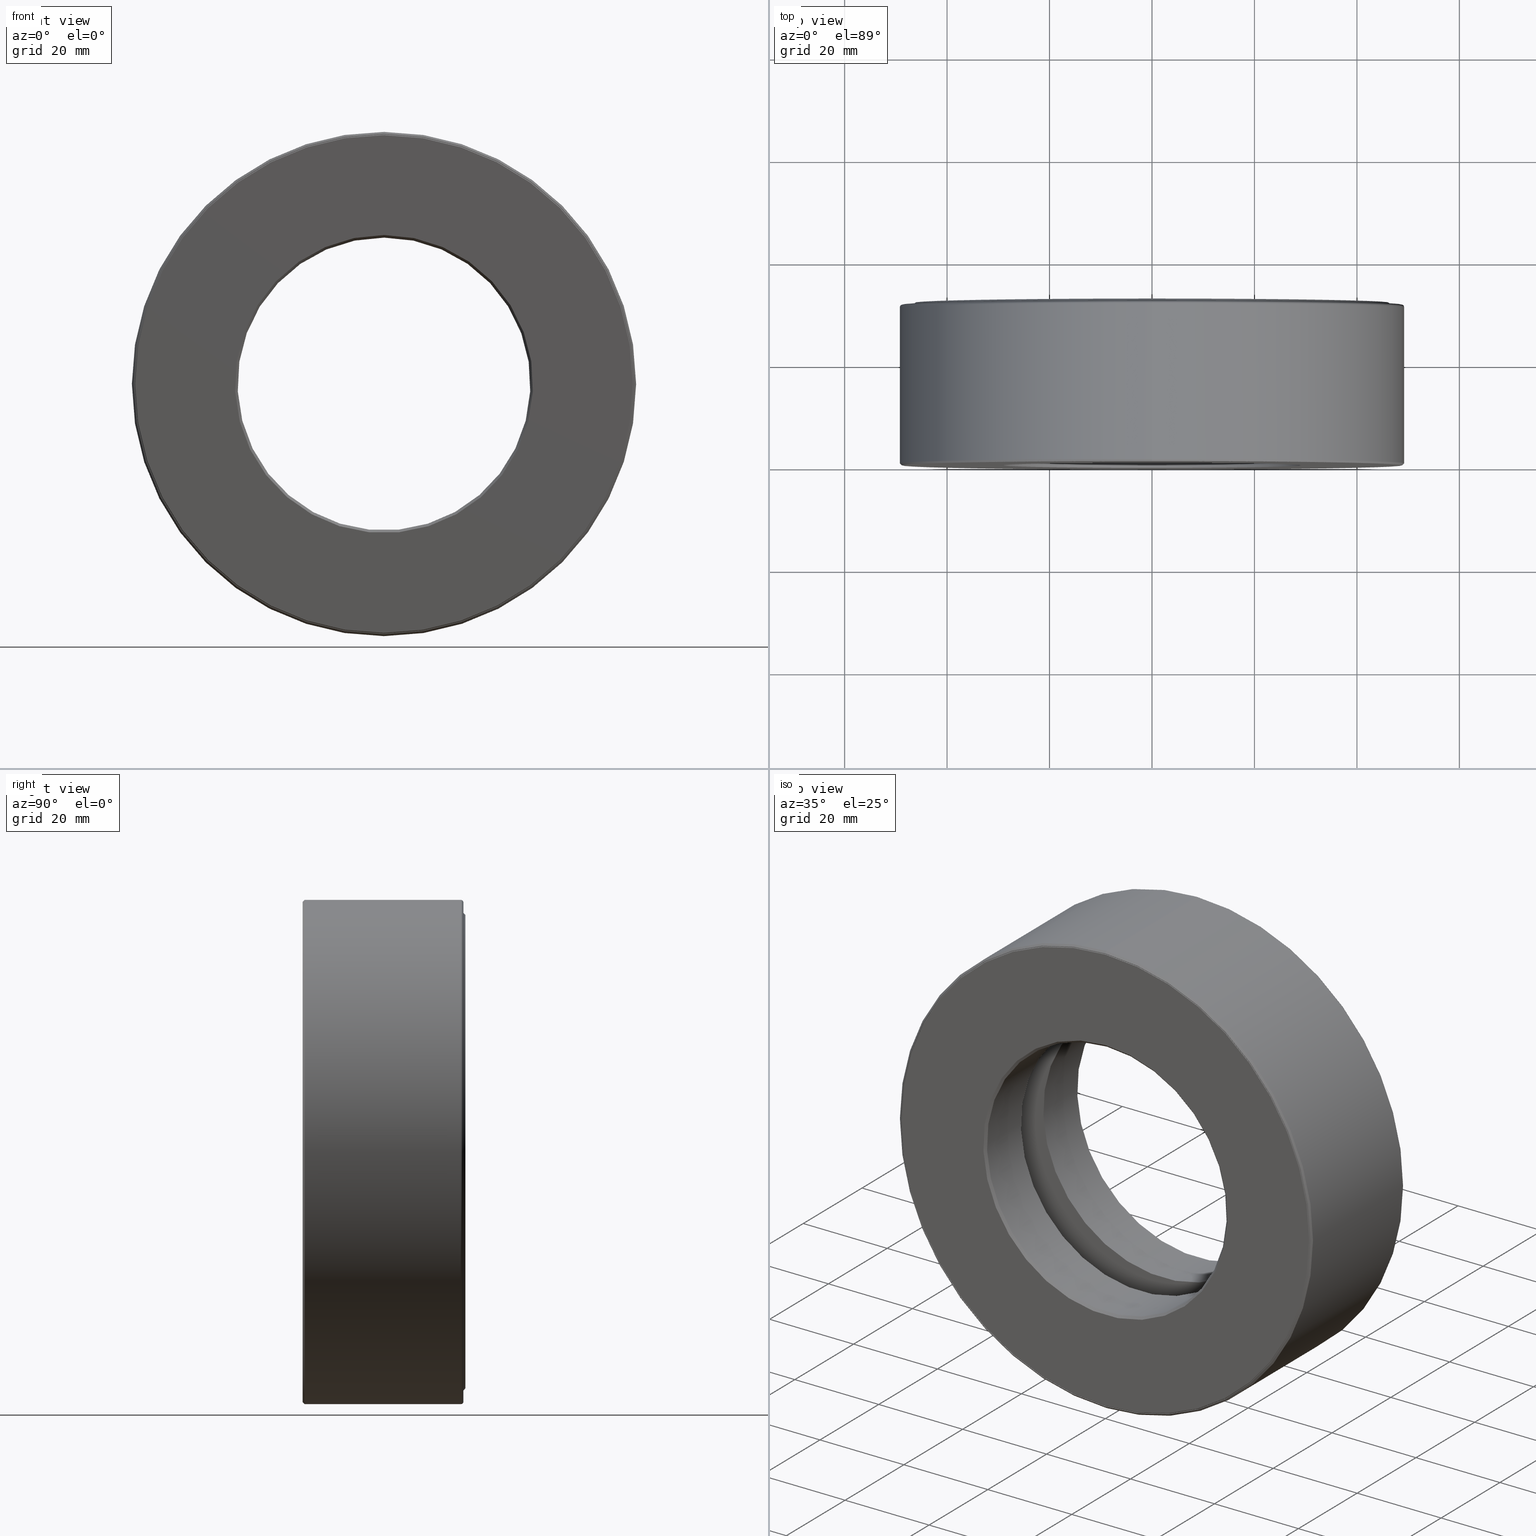
[diagram: canonical four-view strip — front | top / right | iso, engineering-drawing reading convention]
A machine part, canonical four-view strip (front | top / right | iso — engineering-drawing reading convention). The complete STEP part file that produces these views, byte-faithful:
ISO-10303-21;
HEADER;
FILE_DESCRIPTION (( 'STEP AP203' ),
    '1' );
FILE_NAME ('T-100-40.step',
    '2016-06-29T18:27:35',
    ( '' ),
    ( '' ),
    'SwSTEP 2.0',
    'SolidWorks 2016',
    '' );
FILE_SCHEMA (( 'CONFIG_CONTROL_DESIGN' ));
ENDSEC;

DATA;
#1 = ADVANCED_FACE ( 'NONE', ( #312, #441 ), #523, .F. ) ;
#2 = EDGE_CURVE ( 'NONE', #64, #64, #335, .T. ) ;
#3 =( LENGTH_UNIT ( ) NAMED_UNIT ( * ) SI_UNIT ( $, .METRE. ) );
#4 = CYLINDRICAL_SURFACE ( 'NONE', #491, 1.910499999999999600 ) ;
#5 = ORIENTED_EDGE ( 'NONE', *, *, #299, .F. ) ;
#6 = CALENDAR_DATE ( 2016, 29, 6 ) ;
#7 = CARTESIAN_POINT ( 'NONE',  ( 0.0000000000000000000, 1.235000000000000100, 0.0000000000000000000 ) ) ;
#8 = CYLINDRICAL_SURFACE ( 'NONE', #553, 1.125000000000000200 ) ;
#9 = AXIS2_PLACEMENT_3D ( 'NONE', #162, #260, #499 ) ;
#10 = EDGE_LOOP ( 'NONE', ( #157 ) ) ;
#11 = DIRECTION ( 'NONE',  ( -0.0000000000000000000, 1.000000000000000000, 0.0000000000000000000 ) ) ;
#12 = DIRECTION ( 'NONE',  ( 6.982962677686269100E-015, -0.0000000000000000000, 1.000000000000000000 ) ) ;
#13 = FACE_OUTER_BOUND ( 'NONE', #455, .T. ) ;
#14 = PERSON_AND_ORGANIZATION ( #92, #96 ) ;
#15 = ORIENTED_EDGE ( 'NONE', *, *, #159, .F. ) ;
#16 = DIRECTION ( 'NONE',  ( 0.0000000000000000000, 0.0000000000000000000, 1.000000000000000000 ) ) ;
#17 = DIRECTION ( 'NONE',  ( 0.0000000000000000000, 0.0000000000000000000, -1.000000000000000000 ) ) ;
#18 = DIRECTION ( 'NONE',  ( 0.0000000000000000000, 0.0000000000000000000, 1.000000000000000000 ) ) ;
#19 = SPHERICAL_SURFACE ( 'NONE', #519, 0.2500000000000000600 ) ;
#20 = TOROIDAL_SURFACE ( 'NONE', #118, 1.658499999999999900, 0.2499999999999999200 ) ;
#21 = DIRECTION ( 'NONE',  ( 0.0000000000000000000, 0.0000000000000000000, 1.000000000000000000 ) ) ;
#22 = ORIENTED_EDGE ( 'NONE', *, *, #468, .T. ) ;
#23 = DIRECTION ( 'NONE',  ( 0.0000000000000000000, 0.0000000000000000000, 1.000000000000000000 ) ) ;
#24 = CC_DESIGN_APPROVAL ( #512, ( #246 ) ) ;
#25 = DIRECTION ( 'NONE',  ( 0.0000000000000000000, -1.000000000000000000, 0.0000000000000000000 ) ) ;
#26 = CARTESIAN_POINT ( 'NONE',  ( 0.0000000000000000000, 0.0000000000000000000, 0.0000000000000000000 ) ) ;
#27 = DIRECTION ( 'NONE',  ( -0.0000000000000000000, 1.000000000000000000, -0.0000000000000000000 ) ) ;
#28 = AXIS2_PLACEMENT_3D ( 'NONE', #521, #386, #59 ) ;
#29 = FACE_OUTER_BOUND ( 'NONE', #446, .T. ) ;
#30 = CARTESIAN_POINT ( 'NONE',  ( -5.498422868604015000E-016, 0.4750000000000002600, 0.0000000000000000000 ) ) ;
#31 = EDGE_LOOP ( 'NONE', ( #98 ) ) ;
#32 = EDGE_LOOP ( 'NONE', ( #54 ) ) ;
#33 = CARTESIAN_POINT ( 'NONE',  ( 0.0000000000000000000, 1.215000000000000100, 0.0000000000000000000 ) ) ;
#34 = DIRECTION ( 'NONE',  ( 0.0000000000000000000, 0.0000000000000000000, 1.000000000000000000 ) ) ;
#35 = FACE_OUTER_BOUND ( 'NONE', #510, .T. ) ;
#36 = DIRECTION ( 'NONE',  ( -0.0000000000000000000, 1.000000000000000000, -0.0000000000000000000 ) ) ;
#37 = APPROVAL_PERSON_ORGANIZATION ( #398, #293, #219 ) ;
#38 = VERTEX_POINT ( 'NONE', #322 ) ;
#39 = DIRECTION ( 'NONE',  ( 0.0000000000000000000, 0.0000000000000000000, 1.000000000000000000 ) ) ;
#40 = ORIENTED_EDGE ( 'NONE', *, *, #456, .F. ) ;
#41 = AXIS2_PLACEMENT_3D ( 'NONE', #265, #556, #91 ) ;
#42 = EDGE_LOOP ( 'NONE', ( #22 ) ) ;
#43 = EDGE_LOOP ( 'NONE', ( #570 ) ) ;
#44 = CARTESIAN_POINT ( 'NONE',  ( 0.0000000000000000000, -1.088470684975604900E-016, 1.912499999999999600 ) ) ;
#45 = VERTEX_POINT ( 'NONE', #227 ) ;
#46 = CYLINDRICAL_SURFACE ( 'NONE', #250, 1.125000000000000200 ) ;
#47 = LENGTH_MEASURE_WITH_UNIT ( LENGTH_MEASURE( 0.02539999999999999900 ), #3 );
#48 = AXIS2_PLACEMENT_3D ( 'NONE', #399, #357, #592 ) ;
#49 = FACE_OUTER_BOUND ( 'NONE', #334, .T. ) ;
#50 = PERSON_AND_ORGANIZATION_ROLE ( 'design_owner' ) ;
#51 = EDGE_LOOP ( 'NONE', ( #5 ) ) ;
#52 = CARTESIAN_POINT ( 'NONE',  ( 0.0000000000000000000, 0.0000000000000000000, 0.0000000000000000000 ) ) ;
#53 = ADVANCED_FACE ( 'NONE', ( #603, #396 ), #154, .T. ) ;
#54 = ORIENTED_EDGE ( 'NONE', *, *, #547, .F. ) ;
#55 = CARTESIAN_POINT ( 'NONE',  ( -1.737186540141400900E-014, 0.6249999999999997800, -1.658499999999999900 ) ) ;
#56 = FACE_OUTER_BOUND ( 'NONE', #51, .T. ) ;
#57 = AXIS2_PLACEMENT_3D ( 'NONE', #99, #419, #142 ) ;
#58 = ORIENTED_EDGE ( 'NONE', *, *, #103, .F. ) ;
#59 = DIRECTION ( 'NONE',  ( 0.0000000000000000000, 0.0000000000000000000, 1.000000000000000000 ) ) ;
#60 = DIRECTION ( 'NONE',  ( -0.0000000000000000000, 1.000000000000000000, -0.0000000000000000000 ) ) ;
#61 = SPHERICAL_SURFACE ( 'NONE', #562, 0.2500000000000000600 ) ;
#62 = CARTESIAN_POINT ( 'NONE',  ( 0.0000000000000000000, 1.162000000000000100, 0.0000000000000000000 ) ) ;
#63 = CALENDAR_DATE ( 2016, 29, 6 ) ;
#64 = VERTEX_POINT ( 'NONE', #305 ) ;
#65 = AXIS2_PLACEMENT_3D ( 'NONE', #395, #539, #259 ) ;
#66 = PLANE ( 'NONE',  #200 ) ;
#67 = ORIENTED_EDGE ( 'NONE', *, *, #341, .T. ) ;
#68 = AXIS2_PLACEMENT_3D ( 'NONE', #73, #151, #431 ) ;
#69 = EDGE_LOOP ( 'NONE', ( #328 ) ) ;
#70 = CLOSED_SHELL ( 'NONE', ( #329 ) ) ;
#71 = DIRECTION ( 'NONE',  ( -0.0000000000000000000, 1.000000000000000000, 0.0000000000000000000 ) ) ;
#72 = VERTEX_POINT ( 'NONE', #463 ) ;
#73 = CARTESIAN_POINT ( 'NONE',  ( 0.0000000000000000000, 0.0000000000000000000, 0.0000000000000000000 ) ) ;
#74 = EDGE_CURVE ( 'NONE', #314, #314, #508, .T. ) ;
#75 = DIRECTION ( 'NONE',  ( -0.0000000000000000000, 1.000000000000000000, -0.0000000000000000000 ) ) ;
#76 = CARTESIAN_POINT ( 'NONE',  ( 0.0000000000000000000, 1.215000000000000100, 0.0000000000000000000 ) ) ;
#77 = DIRECTION ( 'NONE',  ( -0.0000000000000000000, 1.000000000000000000, -0.0000000000000000000 ) ) ;
#78 = CIRCLE ( 'NONE', #404, 1.145000000000000500 ) ;
#79 = LOCAL_TIME ( 14, 27, 35.00000000000000000, #353 ) ;
#80 = CARTESIAN_POINT ( 'NONE',  ( 0.0000000000000000000, 0.005000000000000413800, 1.917500000000000000 ) ) ;
#81 = DIRECTION ( 'NONE',  ( 0.0000000000000000000, 0.0000000000000000000, 1.000000000000000000 ) ) ;
#82 = VERTEX_POINT ( 'NONE', #466 ) ;
#83 = AXIS2_PLACEMENT_3D ( 'NONE', #500, #448, #39 ) ;
#84 = DIRECTION ( 'NONE',  ( -0.0000000000000000000, 1.000000000000000000, -0.0000000000000000000 ) ) ;
#85 = DATE_TIME_ROLE ( 'creation_date' ) ;
#86 = MANIFOLD_SOLID_BREP ( 'Revolve2[2]', #233 ) ;
#87 = EDGE_LOOP ( 'NONE', ( #254 ) ) ;
#88 = VERTEX_POINT ( 'NONE', #174 ) ;
#89 = EDGE_LOOP ( 'NONE', ( #474 ) ) ;
#90 = AXIS2_PLACEMENT_3D ( 'NONE', #582, #153, #156 ) ;
#91 = DIRECTION ( 'NONE',  ( 0.0000000000000000000, 0.0000000000000000000, 1.000000000000000000 ) ) ;
#92 = PERSON ( 'UNSPECIFIED', 'UNSPECIFIED', 'UNSPECIFIED', ('UNSPECIFIED'), ('UNSPECIFIED'), ('UNSPECIFIED') ) ;
#93 = EDGE_LOOP ( 'NONE', ( #464 ) ) ;
#94 = EDGE_CURVE ( 'NONE', #158, #158, #383, .T. ) ;
#95 = CARTESIAN_POINT ( 'NONE',  ( 0.0000000000000000000, -1.109813247426107000E-016, 0.0000000000000000000 ) ) ;
#96 = ORGANIZATION ( 'UNSPECIFIED', 'UNSPECIFIED', '' ) ;
#97 = CIRCLE ( 'NONE', #155, 1.917500000000000000 ) ;
#98 = ORIENTED_EDGE ( 'NONE', *, *, #574, .F. ) ;
#99 = CARTESIAN_POINT ( 'NONE',  ( 0.0000000000000000000, -1.088470684975604900E-016, 0.0000000000000000000 ) ) ;
#100 = AXIS2_PLACEMENT_3D ( 'NONE', #195, #60, #333 ) ;
#101 = VERTEX_POINT ( 'NONE', #410 ) ;
#102 = CARTESIAN_POINT ( 'NONE',  ( 0.0000000000000000000, 0.6249999999999997800, 0.0000000000000000000 ) ) ;
#103 = EDGE_CURVE ( 'NONE', #207, #207, #479, .T. ) ;
#104 = EDGE_LOOP ( 'NONE', ( #433 ) ) ;
#105 = CARTESIAN_POINT ( 'NONE',  ( 0.0000000000000000000, 0.01499999999999997700, 0.0000000000000000000 ) ) ;
#106 = ORIENTED_EDGE ( 'NONE', *, *, #351, .T. ) ;
#107 = DIRECTION ( 'NONE',  ( 0.0000000000000000000, -0.0000000000000000000, -1.000000000000000000 ) ) ;
#108 = CARTESIAN_POINT ( 'NONE',  ( 0.0000000000000000000, 0.02000000000000033300, 0.0000000000000000000 ) ) ;
#109 = AXIS2_PLACEMENT_3D ( 'NONE', #62, #84, #511 ) ;
#110 = FACE_OUTER_BOUND ( 'NONE', #32, .T. ) ;
#111 = ORIENTED_EDGE ( 'NONE', *, *, #272, .F. ) ;
#112 = CALENDAR_DATE ( 2016, 29, 6 ) ;
#113 = VERTEX_POINT ( 'NONE', #369 ) ;
#114 = ORIENTED_EDGE ( 'NONE', *, *, #245, .F. ) ;
#115 = DIRECTION ( 'NONE',  ( 0.0000000000000000000, 0.0000000000000000000, 1.000000000000000000 ) ) ;
#116 = AXIS2_PLACEMENT_3D ( 'NONE', #576, #387, #541 ) ;
#117 = ORIENTED_EDGE ( 'NONE', *, *, #566, .T. ) ;
#118 = AXIS2_PLACEMENT_3D ( 'NONE', #102, #138, #326 ) ;
#119 = DIRECTION ( 'NONE',  ( 0.0000000000000000000, 0.0000000000000000000, 1.000000000000000000 ) ) ;
#120 = CARTESIAN_POINT ( 'NONE',  ( 0.0000000000000000000, 1.235000000000000100, 0.0000000000000000000 ) ) ;
#121 = CIRCLE ( 'NONE', #236, 1.917500000000000000 ) ;
#122 = ORIENTED_EDGE ( 'NONE', *, *, #139, .T. ) ;
#123 = SECURITY_CLASSIFICATION_LEVEL ( 'unclassified' ) ;
#124 = CALENDAR_DATE ( 2016, 29, 6 ) ;
#125 = FACE_OUTER_BOUND ( 'NONE', #168, .T. ) ;
#126 = CARTESIAN_POINT ( 'NONE',  ( 0.0000000000000000000, 0.7749999999999996900, 1.858500000000000000 ) ) ;
#127 = EDGE_LOOP ( 'NONE', ( #589 ) ) ;
#128 = ADVANCED_FACE ( 'NONE', ( #29, #213 ), #496, .F. ) ;
#129 = CARTESIAN_POINT ( 'NONE',  ( 0.0000000000000000000, 1.235000000000000100, 1.857500000000000200 ) ) ;
#130 = ORIENTED_EDGE ( 'NONE', *, *, #103, .T. ) ;
#131 = UNCERTAINTY_MEASURE_WITH_UNIT (LENGTH_MEASURE( 1.000000000000000100E-005 ), #135, 'distance_accuracy_value', 'NONE');
#132 = CC_DESIGN_PERSON_AND_ORGANIZATION_ASSIGNMENT ( #255, #309, ( #484 ) ) ;
#133 = APPLICATION_PROTOCOL_DEFINITION ( 'international standard', 'config_control_design', 1994, #238 ) ;
#134 = FACE_OUTER_BOUND ( 'NONE', #505, .T. ) ;
#135 =( CONVERSION_BASED_UNIT ( 'INCH', #47 ) LENGTH_UNIT ( ) NAMED_UNIT ( #565 ) );
#136 = CIRCLE ( 'NONE', #109, 1.910499999999999600 ) ;
#137 = ADVANCED_FACE ( 'NONE', ( #261, #190 ), #268, .T. ) ;
#138 = DIRECTION ( 'NONE',  ( -0.0000000000000000000, 1.000000000000000000, -0.0000000000000000000 ) ) ;
#139 = EDGE_CURVE ( 'NONE', #307, #307, #173, .T. ) ;
#140 = CC_DESIGN_PERSON_AND_ORGANIZATION_ASSIGNMENT ( #282, #552, ( #484 ) ) ;
#141 = ADVANCED_FACE ( 'NONE', ( #134, #575 ), #20, .F. ) ;
#142 = DIRECTION ( 'NONE',  ( 0.0000000000000000000, 0.0000000000000000000, 1.000000000000000000 ) ) ;
#143 = EDGE_LOOP ( 'NONE', ( #482 ) ) ;
#144 = AXIS2_PLACEMENT_3D ( 'NONE', #483, #71, #23 ) ;
#145 = DIRECTION ( 'NONE',  ( -1.000000000000000000, 0.0000000000000000000, 6.982962677686269100E-015 ) ) ;
#146 = EDGE_LOOP ( 'NONE', ( #40 ) ) ;
#147 = DIRECTION ( 'NONE',  ( -0.0000000000000000000, 1.000000000000000000, -0.0000000000000000000 ) ) ;
#148 = FACE_OUTER_BOUND ( 'NONE', #31, .T. ) ;
#149 = AXIS2_PLACEMENT_3D ( 'NONE', #105, #330, #423 ) ;
#150 = VERTEX_POINT ( 'NONE', #180 ) ;
#151 = DIRECTION ( 'NONE',  ( -0.0000000000000000000, 1.000000000000000000, -0.0000000000000000000 ) ) ;
#152 = EDGE_LOOP ( 'NONE', ( #453 ) ) ;
#153 = DIRECTION ( 'NONE',  ( -0.0000000000000000000, 1.000000000000000000, -0.0000000000000000000 ) ) ;
#154 = PLANE ( 'NONE',  #372 ) ;
#155 = AXIS2_PLACEMENT_3D ( 'NONE', #447, #27, #218 ) ;
#156 = DIRECTION ( 'NONE',  ( 0.0000000000000000000, 0.0000000000000000000, 1.000000000000000000 ) ) ;
#157 = ORIENTED_EDGE ( 'NONE', *, *, #509, .F. ) ;
#158 = VERTEX_POINT ( 'NONE', #80 ) ;
#159 = EDGE_CURVE ( 'NONE', #550, #550, #368, .T. ) ;
#160 = CARTESIAN_POINT ( 'NONE',  ( 0.0000000000000000000, 1.229999999999999800, 0.0000000000000000000 ) ) ;
#161 = APPROVAL_ROLE ( '' ) ;
#162 = CARTESIAN_POINT ( 'NONE',  ( 0.0000000000000000000, 1.250000000000000000, 0.0000000000000000000 ) ) ;
#163 = FACE_OUTER_BOUND ( 'NONE', #89, .T. ) ;
#164 = APPROVAL_STATUS ( 'not_yet_approved' ) ;
#165 = COORDINATED_UNIVERSAL_TIME_OFFSET ( 5, 0, .BEHIND. ) ;
#166 = CIRCLE ( 'NONE', #211, 1.125000000000000000 ) ;
#167 = AXIS2_PLACEMENT_3D ( 'NONE', #95, #196, #18 ) ;
#168 = EDGE_LOOP ( 'NONE', ( #264 ) ) ;
#169 = DIRECTION ( 'NONE',  ( 0.0000000000000000000, 0.0000000000000000000, 1.000000000000000000 ) ) ;
#170 = APPROVAL_ROLE ( '' ) ;
#171 = DIRECTION ( 'NONE',  ( -0.0000000000000000000, 1.000000000000000000, -0.0000000000000000000 ) ) ;
#172 = CC_DESIGN_DATE_AND_TIME_ASSIGNMENT ( #390, #358, ( #246 ) ) ;
#173 = CIRCLE ( 'NONE', #297, 1.857500000000000200 ) ;
#174 = CARTESIAN_POINT ( 'NONE',  ( 0.0000000000000000000, 0.4750000000000002600, 1.917500000000000000 ) ) ;
#175 = CIRCLE ( 'NONE', #167, 1.922500000000000100 ) ;
#176 = AXIS2_PLACEMENT_3D ( 'NONE', #285, #192, #481 ) ;
#177 = ADVANCED_FACE ( 'NONE', ( #13, #221 ), #318, .T. ) ;
#178 = ADVANCED_FACE ( 'NONE', ( #503, #163 ), #4, .T. ) ;
#179 = AXIS2_PLACEMENT_3D ( 'NONE', #108, #426, #17 ) ;
#180 = CARTESIAN_POINT ( 'NONE',  ( 0.0000000000000000000, 1.250000000000000000, 1.822499999999999600 ) ) ;
#181 = PERSON_AND_ORGANIZATION ( #92, #96 ) ;
#182 = ADVANCED_FACE ( 'NONE', ( #513, #411 ), #424, .F. ) ;
#183 = FACE_BOUND ( 'NONE', #146, .T. ) ;
#184 = APPROVAL_STATUS ( 'not_yet_approved' ) ;
#185 = ORIENTED_EDGE ( 'NONE', *, *, #245, .T. ) ;
#186 = CARTESIAN_POINT ( 'NONE',  ( 0.0000000000000000000, 1.229999999999999800, 0.0000000000000000000 ) ) ;
#187 =( NAMED_UNIT ( * ) PLANE_ANGLE_UNIT ( ) SI_UNIT ( $, .RADIAN. ) );
#188 = MANIFOLD_SOLID_BREP ( 'Revolve2[1]', #579 ) ;
#189 = CARTESIAN_POINT ( 'NONE',  ( 0.0000000000000000000, 0.6249999999999997800, 0.0000000000000000000 ) ) ;
#190 = FACE_BOUND ( 'NONE', #591, .T. ) ;
#191 = CYLINDRICAL_SURFACE ( 'NONE', #275, 1.937499999999999800 ) ;
#192 = DIRECTION ( 'NONE',  ( -0.0000000000000000000, 1.000000000000000000, -0.0000000000000000000 ) ) ;
#193 = DIRECTION ( 'NONE',  ( 0.0000000000000000000, 0.0000000000000000000, 1.000000000000000000 ) ) ;
#194 = CIRCLE ( 'NONE', #57, 1.912499999999999600 ) ;
#195 = CARTESIAN_POINT ( 'NONE',  ( 0.0000000000000000000, 0.005000000000000413800, 0.0000000000000000000 ) ) ;
#196 = DIRECTION ( 'NONE',  ( -0.0000000000000000000, 1.000000000000000000, -0.0000000000000000000 ) ) ;
#197 = VERTEX_POINT ( 'NONE', #225 ) ;
#198 = CARTESIAN_POINT ( 'NONE',  ( -9.522558598604851900E-016, 0.7749999999999998000, 0.0000000000000000000 ) ) ;
#199 = EDGE_LOOP ( 'NONE', ( #222 ) ) ;
#200 = AXIS2_PLACEMENT_3D ( 'NONE', #389, #430, #580 ) ;
#201 = DIRECTION ( 'NONE',  ( -1.000000000000000000, 0.0000000000000000000, 3.491481338843134500E-015 ) ) ;
#202 = CARTESIAN_POINT ( 'NONE',  ( 0.0000000000000000000, 0.7749999999999996900, 0.0000000000000000000 ) ) ;
#203 = EDGE_LOOP ( 'NONE', ( #111 ) ) ;
#204 = EDGE_CURVE ( 'NONE', #407, #407, #194, .T. ) ;
#205 = PLANE ( 'NONE',  #144 ) ;
#206 = APPROVAL ( #403, 'UNSPECIFIED' ) ;
#207 = VERTEX_POINT ( 'NONE', #498 ) ;
#208 = EDGE_LOOP ( 'NONE', ( #130 ) ) ;
#209 = EDGE_LOOP ( 'NONE', ( #271 ) ) ;
#210 = CLOSED_SHELL ( 'NONE', ( #231 ) ) ;
#211 = AXIS2_PLACEMENT_3D ( 'NONE', #359, #75, #397 ) ;
#212 = DIRECTION ( 'NONE',  ( 0.0000000000000000000, -0.0000000000000000000, -1.000000000000000000 ) ) ;
#213 = FACE_OUTER_BOUND ( 'NONE', #344, .T. ) ;
#214 = APPROVAL_PERSON_ORGANIZATION ( #480, #206, #170 ) ;
#215 = AXIS2_PLACEMENT_3D ( 'NONE', #534, #394, #21 ) ;
#216 = PLANE ( 'NONE',  #501 ) ;
#217 = FACE_OUTER_BOUND ( 'NONE', #10, .T. ) ;
#218 = DIRECTION ( 'NONE',  ( 0.0000000000000000000, 0.0000000000000000000, 1.000000000000000000 ) ) ;
#219 = APPROVAL_ROLE ( '' ) ;
#220 = CARTESIAN_POINT ( 'NONE',  ( 0.0000000000000000000, 1.250000000000000000, 0.0000000000000000000 ) ) ;
#221 = FACE_BOUND ( 'NONE', #104, .T. ) ;
#222 = ORIENTED_EDGE ( 'NONE', *, *, #272, .T. ) ;
#223 = FACE_BOUND ( 'NONE', #203, .T. ) ;
#224 = AXIS2_PLACEMENT_3D ( 'NONE', #189, #171, #442 ) ;
#225 = CARTESIAN_POINT ( 'NONE',  ( 0.0000000000000000000, 1.215000000000000100, 1.857500000000000200 ) ) ;
#226 = ORIENTED_EDGE ( 'NONE', *, *, #574, .T. ) ;
#227 = CARTESIAN_POINT ( 'NONE',  ( 0.0000000000000000000, 1.235000000000000100, 1.917500000000000000 ) ) ;
#228 = ADVANCED_FACE ( 'NONE', ( ), #19, .T. ) ;
#229 = EDGE_CURVE ( 'NONE', #197, #197, #469, .T. ) ;
#230 = ORIENTED_EDGE ( 'NONE', *, *, #204, .F. ) ;
#231 = ADVANCED_FACE ( 'NONE', ( ), #61, .T. ) ;
#232 = COORDINATED_UNIVERSAL_TIME_OFFSET ( 5, 0, .BEHIND. ) ;
#233 = CLOSED_SHELL ( 'NONE', ( #53, #605, #277, #319, #568, #373, #283, #178 ) ) ;
#234 = CARTESIAN_POINT ( 'NONE',  ( 0.0000000000000000000, 0.7750000000000000200, 1.125000000000000200 ) ) ;
#235 = DIRECTION ( 'NONE',  ( 0.0000000000000000000, 0.0000000000000000000, 1.000000000000000000 ) ) ;
#236 = AXIS2_PLACEMENT_3D ( 'NONE', #76, #36, #34 ) ;
#237 = ADVANCED_FACE ( 'NONE', ( #110, #388 ), #66, .F. ) ;
#238 = APPLICATION_CONTEXT ( 'configuration controlled 3d designs of mechanical parts and assemblies' ) ;
#239 = FACE_OUTER_BOUND ( 'NONE', #584, .T. ) ;
#240 = ORIENTED_EDGE ( 'NONE', *, *, #536, .T. ) ;
#241 = APPROVAL_DATE_TIME ( #377, #206 ) ;
#242 = CONICAL_SURFACE ( 'NONE', #269, 1.125000000000000200, 0.7853981633974449500 ) ;
#243 = ORIENTED_EDGE ( 'NONE', *, *, #509, .T. ) ;
#244 = CARTESIAN_POINT ( 'NONE',  ( -2.302937715538538000E-032, -5.442353424878024300E-017, 0.0000000000000000000 ) ) ;
#245 = EDGE_CURVE ( 'NONE', #346, #346, #78, .T. ) ;
#246 = SECURITY_CLASSIFICATION ( '', '', #123 ) ;
#247 = ORIENTED_EDGE ( 'NONE', *, *, #229, .F. ) ;
#248 = DIRECTION ( 'NONE',  ( -0.0000000000000000000, 1.000000000000000000, -0.0000000000000000000 ) ) ;
#249 = CARTESIAN_POINT ( 'NONE',  ( 0.0000000000000000000, 0.4750000000000003100, 0.0000000000000000000 ) ) ;
#250 = AXIS2_PLACEMENT_3D ( 'NONE', #296, #147, #257 ) ;
#251 = DIRECTION ( 'NONE',  ( -3.491481338843134500E-015, 0.0000000000000000000, -1.000000000000000000 ) ) ;
#252 = SPHERICAL_SURFACE ( 'NONE', #583, 0.2500000000000000600 ) ;
#253 = DIRECTION ( 'NONE',  ( -0.0000000000000000000, 1.000000000000000000, -0.0000000000000000000 ) ) ;
#254 = ORIENTED_EDGE ( 'NONE', *, *, #159, .T. ) ;
#255 = PERSON_AND_ORGANIZATION ( #92, #96 ) ;
#256 = FACE_BOUND ( 'NONE', #43, .T. ) ;
#257 = DIRECTION ( 'NONE',  ( 0.0000000000000000000, 0.0000000000000000000, 1.000000000000000000 ) ) ;
#258 = ORIENTED_EDGE ( 'NONE', *, *, #139, .F. ) ;
#259 = DIRECTION ( 'NONE',  ( 0.0000000000000000000, 0.0000000000000000000, 1.000000000000000000 ) ) ;
#260 = DIRECTION ( 'NONE',  ( -0.0000000000000000000, 1.000000000000000000, -0.0000000000000000000 ) ) ;
#261 = FACE_OUTER_BOUND ( 'NONE', #323, .T. ) ;
#262 = DIRECTION ( 'NONE',  ( 0.0000000000000000000, -1.000000000000000000, 0.0000000000000000000 ) ) ;
#263 = LOCAL_TIME ( 14, 27, 35.00000000000000000, #370 ) ;
#264 = ORIENTED_EDGE ( 'NONE', *, *, #351, .F. ) ;
#265 = CARTESIAN_POINT ( 'NONE',  ( 0.0000000000000000000, 1.235000000000000100, 0.0000000000000000000 ) ) ;
#266 = PRODUCT_RELATED_PRODUCT_CATEGORY ( 'detail', '', ( #559 ) ) ;
#267 = CIRCLE ( 'NONE', #90, 1.858500000000000000 ) ;
#268 = CONICAL_SURFACE ( 'NONE', #176, 1.912499999999999600, 0.7853981633974316300 ) ;
#269 = AXIS2_PLACEMENT_3D ( 'NONE', #186, #417, #235 ) ;
#270 = FACE_OUTER_BOUND ( 'NONE', #87, .T. ) ;
#271 = ORIENTED_EDGE ( 'NONE', *, *, #495, .F. ) ;
#272 = EDGE_CURVE ( 'NONE', #525, #525, #267, .T. ) ;
#273 = CC_DESIGN_SECURITY_CLASSIFICATION ( #246, ( #484 ) ) ;
#274 = ORIENTED_EDGE ( 'NONE', *, *, #74, .F. ) ;
#275 = AXIS2_PLACEMENT_3D ( 'NONE', #355, #308, #81 ) ;
#276 = CARTESIAN_POINT ( 'NONE',  ( 0.0000000000000000000, 0.7749999999999996900, 1.458499999999999500 ) ) ;
#277 = ADVANCED_FACE ( 'NONE', ( #560, #425 ), #436, .T. ) ;
#278 = AXIS2_PLACEMENT_3D ( 'NONE', #30, #460, #409 ) ;
#279 = ADVANCED_FACE ( 'NONE', ( #546, #360 ), #487, .F. ) ;
#280 = CARTESIAN_POINT ( 'NONE',  ( 0.0000000000000000000, -1.109813247426107000E-016, 1.922500000000000100 ) ) ;
#281 = CIRCLE ( 'NONE', #476, 1.937500000000000000 ) ;
#282 = PERSON_AND_ORGANIZATION ( #92, #96 ) ;
#283 = ADVANCED_FACE ( 'NONE', ( #239, #343 ), #375, .T. ) ;
#284 = VERTEX_POINT ( 'NONE', #457 ) ;
#285 = CARTESIAN_POINT ( 'NONE',  ( 0.0000000000000000000, -1.088470684975604900E-016, 0.0000000000000000000 ) ) ;
#286 = ADVANCED_FACE ( 'NONE', ( #598, #402 ), #205, .F. ) ;
#287 = DIRECTION ( 'NONE',  ( -0.0000000000000000000, 1.000000000000000000, -0.0000000000000000000 ) ) ;
#288 = ORIENTED_EDGE ( 'NONE', *, *, #536, .F. ) ;
#289 = DIRECTION ( 'NONE',  ( -0.0000000000000000000, 1.000000000000000000, -0.0000000000000000000 ) ) ;
#290 = FACE_BOUND ( 'NONE', #420, .T. ) ;
#291 = EDGE_CURVE ( 'NONE', #321, #321, #304, .T. ) ;
#292 = EDGE_LOOP ( 'NONE', ( #356 ) ) ;
#293 = APPROVAL ( #184, 'UNSPECIFIED' ) ;
#294 = CIRCLE ( 'NONE', #215, 1.858500000000000000 ) ;
#295 = VERTEX_POINT ( 'NONE', #280 ) ;
#296 = CARTESIAN_POINT ( 'NONE',  ( 0.0000000000000000000, 0.0000000000000000000, 0.0000000000000000000 ) ) ;
#297 = AXIS2_PLACEMENT_3D ( 'NONE', #7, #380, #571 ) ;
#298 = DIRECTION ( 'NONE',  ( 0.0000000000000000000, 0.0000000000000000000, 1.000000000000000000 ) ) ;
#299 = EDGE_CURVE ( 'NONE', #533, #533, #294, .T. ) ;
#300 = CARTESIAN_POINT ( 'NONE',  ( -1.658499999999999900, 0.6249999999999997800, 0.0000000000000000000 ) ) ;
#301 = EDGE_LOOP ( 'NONE', ( #586 ) ) ;
#302 = FACE_OUTER_BOUND ( 'NONE', #152, .T. ) ;
#303 = DIRECTION ( 'NONE',  ( 0.0000000000000000000, -1.000000000000000000, 0.0000000000000000000 ) ) ;
#304 = CIRCLE ( 'NONE', #597, 1.458499999999999500 ) ;
#305 = CARTESIAN_POINT ( 'NONE',  ( 0.0000000000000000000, 0.7749999999999996900, 1.910499999999999600 ) ) ;
#306 = LOCAL_TIME ( 14, 27, 35.00000000000000000, #364 ) ;
#307 = VERTEX_POINT ( 'NONE', #129 ) ;
#308 = DIRECTION ( 'NONE',  ( -0.0000000000000000000, 1.000000000000000000, -0.0000000000000000000 ) ) ;
#309 = PERSON_AND_ORGANIZATION_ROLE ( 'design_supplier' ) ;
#310 = CARTESIAN_POINT ( 'NONE',  ( 0.0000000000000000000, 0.01499999999999997700, 1.937499999999999800 ) ) ;
#311 = CC_DESIGN_PERSON_AND_ORGANIZATION_ASSIGNMENT ( #514, #451, ( #246 ) ) ;
#312 = FACE_OUTER_BOUND ( 'NONE', #209, .T. ) ;
#313 = AXIS2_PLACEMENT_3D ( 'NONE', #518, #416, #374 ) ;
#314 = VERTEX_POINT ( 'NONE', #310 ) ;
#315 = EDGE_CURVE ( 'NONE', #113, #113, #281, .T. ) ;
#316 = ADVANCED_FACE ( 'NONE', ( ), #529, .T. ) ;
#317 = CARTESIAN_POINT ( 'NONE',  ( 0.0000000000000000000, 0.4750000000000003100, 1.458499999999999500 ) ) ;
#318 = CONICAL_SURFACE ( 'NONE', #452, 1.922500000000000100, 0.7853981633974355100 ) ;
#319 = ADVANCED_FACE ( 'NONE', ( #35, #148 ), #46, .F. ) ;
#320 = DATE_AND_TIME ( #385, #263 ) ;
#321 = VERTEX_POINT ( 'NONE', #276 ) ;
#322 = CARTESIAN_POINT ( 'NONE',  ( 0.0000000000000000000, -1.099121123854712800E-016, 1.917500000000000000 ) ) ;
#323 = EDGE_LOOP ( 'NONE', ( #438 ) ) ;
#324 = AXIS2_PLACEMENT_3D ( 'NONE', #332, #554, #449 ) ;
#325 = EDGE_LOOP ( 'NONE', ( #258 ) ) ;
#326 = DIRECTION ( 'NONE',  ( 0.0000000000000000000, 0.0000000000000000000, 1.000000000000000000 ) ) ;
#327 = CIRCLE ( 'NONE', #83, 1.917500000000000000 ) ;
#328 = ORIENTED_EDGE ( 'NONE', *, *, #315, .T. ) ;
#329 = ADVANCED_FACE ( 'NONE', ( ), #252, .T. ) ;
#330 = DIRECTION ( 'NONE',  ( -0.0000000000000000000, 1.000000000000000000, -0.0000000000000000000 ) ) ;
#331 = MANIFOLD_SOLID_BREP ( 'BALLS[3]', #567 ) ;
#332 = CARTESIAN_POINT ( 'NONE',  ( 0.0000000000000000000, 0.7750000000000000200, 0.0000000000000000000 ) ) ;
#333 = DIRECTION ( 'NONE',  ( 0.0000000000000000000, 0.0000000000000000000, 1.000000000000000000 ) ) ;
#334 = EDGE_LOOP ( 'NONE', ( #517 ) ) ;
#335 = CIRCLE ( 'NONE', #604, 1.910499999999999600 ) ;
#336 = CARTESIAN_POINT ( 'NONE',  ( 0.0000000000000000000, -1.109813247426107000E-016, 0.0000000000000000000 ) ) ;
#337 = DATE_AND_TIME ( #63, #79 ) ;
#338 = FACE_OUTER_BOUND ( 'NONE', #127, .T. ) ;
#339 = AXIS2_PLACEMENT_3D ( 'NONE', #33, #77, #590 ) ;
#340 = ORIENTED_EDGE ( 'NONE', *, *, #456, .T. ) ;
#341 = EDGE_CURVE ( 'NONE', #284, #284, #121, .T. ) ;
#342 = CC_DESIGN_DATE_AND_TIME_ASSIGNMENT ( #548, #85, ( #381 ) ) ;
#343 = FACE_BOUND ( 'NONE', #301, .T. ) ;
#344 = EDGE_LOOP ( 'NONE', ( #122 ) ) ;
#345 = DIRECTION ( 'NONE',  ( 1.000000000000000000, 0.0000000000000000000, 0.0000000000000000000 ) ) ;
#346 = VERTEX_POINT ( 'NONE', #405 ) ;
#347 = DIRECTION ( 'NONE',  ( 0.0000000000000000000, -0.0000000000000000000, -1.000000000000000000 ) ) ;
#348 = DIRECTION ( 'NONE',  ( 0.0000000000000000000, 0.0000000000000000000, -1.000000000000000000 ) ) ;
#349 = CC_DESIGN_PERSON_AND_ORGANIZATION_ASSIGNMENT ( #181, #50, ( #559 ) ) ;
#350 = DIRECTION ( 'NONE',  ( -0.0000000000000000000, 1.000000000000000000, 0.0000000000000000000 ) ) ;
#351 = EDGE_CURVE ( 'NONE', #585, #585, #166, .T. ) ;
#352 = ORIENTED_EDGE ( 'NONE', *, *, #341, .F. ) ;
#353 = COORDINATED_UNIVERSAL_TIME_OFFSET ( 5, 0, .BEHIND. ) ;
#354 = MANIFOLD_SOLID_BREP ( 'BALLS[1]', #535 ) ;
#355 = CARTESIAN_POINT ( 'NONE',  ( 0.0000000000000000000, 0.0000000000000000000, 0.0000000000000000000 ) ) ;
#356 = ORIENTED_EDGE ( 'NONE', *, *, #94, .T. ) ;
#357 = DIRECTION ( 'NONE',  ( -0.0000000000000000000, 1.000000000000000000, -0.0000000000000000000 ) ) ;
#358 = DATE_TIME_ROLE ( 'classification_date' ) ;
#359 = CARTESIAN_POINT ( 'NONE',  ( 0.0000000000000000000, 0.02000000000000033300, 0.0000000000000000000 ) ) ;
#360 = FACE_BOUND ( 'NONE', #599, .T. ) ;
#361 = PERSON_AND_ORGANIZATION_ROLE ( 'creator' ) ;
#362 =( GEOMETRIC_REPRESENTATION_CONTEXT ( 3 ) GLOBAL_UNCERTAINTY_ASSIGNED_CONTEXT ( ( #131 ) ) GLOBAL_UNIT_ASSIGNED_CONTEXT ( ( #135, #187, #413 ) ) REPRESENTATION_CONTEXT ( 'NONE', 'WORKASPACE' ) );
#363 = EDGE_LOOP ( 'NONE', ( #243 ) ) ;
#364 = COORDINATED_UNIVERSAL_TIME_OFFSET ( 5, 0, .BEHIND. ) ;
#365 = FACE_OUTER_BOUND ( 'NONE', #42, .T. ) ;
#366 = EDGE_LOOP ( 'NONE', ( #596 ) ) ;
#367 = ORIENTED_EDGE ( 'NONE', *, *, #74, .T. ) ;
#368 = CIRCLE ( 'NONE', #437, 1.458499999999999500 ) ;
#369 = CARTESIAN_POINT ( 'NONE',  ( 0.0000000000000000000, 1.215000000000000100, 1.937500000000000000 ) ) ;
#370 = COORDINATED_UNIVERSAL_TIME_OFFSET ( 5, 0, .BEHIND. ) ;
#371 = ADVANCED_FACE ( 'NONE', ( #125, #569 ), #8, .F. ) ;
#372 = AXIS2_PLACEMENT_3D ( 'NONE', #202, #25, #347 ) ;
#373 = ADVANCED_FACE ( 'NONE', ( #365, #290 ), #549, .T. ) ;
#374 = DIRECTION ( 'NONE',  ( 1.000000000000000000, 0.0000000000000000000, 0.0000000000000000000 ) ) ;
#375 = CONICAL_SURFACE ( 'NONE', #116, 1.822499999999999600, 0.7853981633974498300 ) ;
#376 = EDGE_LOOP ( 'NONE', ( #226 ) ) ;
#377 = DATE_AND_TIME ( #124, #532 ) ;
#378 = ADVANCED_FACE ( 'NONE', ( #414, #428 ), #462, .F. ) ;
#379 = DIRECTION ( 'NONE',  ( 0.0000000000000000000, 0.0000000000000000000, 1.000000000000000000 ) ) ;
#380 = DIRECTION ( 'NONE',  ( -0.0000000000000000000, 1.000000000000000000, -0.0000000000000000000 ) ) ;
#381 = PRODUCT_DEFINITION ( 'UNKNOWN', '', #484, #465 ) ;
#382 = DIRECTION ( 'NONE',  ( 1.000000000000000000, 0.0000000000000000000, -1.047444401652940000E-014 ) ) ;
#383 = CIRCLE ( 'NONE', #100, 1.917500000000000000 ) ;
#384 = CARTESIAN_POINT ( 'NONE',  ( 1.658499999999999900, 0.6249999999999997800, -1.158124360094267100E-014 ) ) ;
#385 = CALENDAR_DATE ( 2016, 29, 6 ) ;
#386 = DIRECTION ( 'NONE',  ( -0.0000000000000000000, 1.000000000000000000, -0.0000000000000000000 ) ) ;
#387 = DIRECTION ( 'NONE',  ( 0.0000000000000000000, -1.000000000000000000, 0.0000000000000000000 ) ) ;
#388 = FACE_BOUND ( 'NONE', #493, .T. ) ;
#389 = CARTESIAN_POINT ( 'NONE',  ( -6.418956046085688700E-032, -1.104467185640409900E-016, 0.0000000000000000000 ) ) ;
#390 = DATE_AND_TIME ( #6, #444 ) ;
#391 = CIRCLE ( 'NONE', #531, 1.125000000000000200 ) ;
#392 = DIRECTION ( 'NONE',  ( 0.0000000000000000000, -1.000000000000000000, 0.0000000000000000000 ) ) ;
#393 = AXIS2_PLACEMENT_3D ( 'NONE', #160, #497, #440 ) ;
#394 = DIRECTION ( 'NONE',  ( -0.0000000000000000000, 1.000000000000000000, -0.0000000000000000000 ) ) ;
#395 = CARTESIAN_POINT ( 'NONE',  ( 0.0000000000000000000, 0.0000000000000000000, 0.0000000000000000000 ) ) ;
#396 = FACE_OUTER_BOUND ( 'NONE', #470, .T. ) ;
#397 = DIRECTION ( 'NONE',  ( 0.0000000000000000000, 0.0000000000000000000, 1.000000000000000000 ) ) ;
#398 = PERSON_AND_ORGANIZATION ( #92, #96 ) ;
#399 = CARTESIAN_POINT ( 'NONE',  ( 0.0000000000000000000, 0.0000000000000000000, 0.0000000000000000000 ) ) ;
#400 = EDGE_LOOP ( 'NONE', ( #58 ) ) ;
#401 = AXIS2_PLACEMENT_3D ( 'NONE', #120, #303, #588 ) ;
#402 = FACE_BOUND ( 'NONE', #606, .T. ) ;
#403 = APPROVAL_STATUS ( 'not_yet_approved' ) ;
#404 = AXIS2_PLACEMENT_3D ( 'NONE', #489, #429, #537 ) ;
#405 = CARTESIAN_POINT ( 'NONE',  ( 0.0000000000000000000, 1.250000000000000000, 1.145000000000000500 ) ) ;
#406 = EDGE_LOOP ( 'NONE', ( #367 ) ) ;
#407 = VERTEX_POINT ( 'NONE', #44 ) ;
#408 = EDGE_CURVE ( 'NONE', #72, #72, #391, .T. ) ;
#409 = DIRECTION ( 'NONE',  ( 0.0000000000000000000, -0.0000000000000000000, -1.000000000000000000 ) ) ;
#410 = CARTESIAN_POINT ( 'NONE',  ( 0.0000000000000000000, 1.229999999999999800, 1.125000000000000200 ) ) ;
#411 = FACE_BOUND ( 'NONE', #208, .T. ) ;
#412 = ADVANCED_FACE ( 'NONE', ( #338, #555 ), #191, .T. ) ;
#413 =( NAMED_UNIT ( * ) SI_UNIT ( $, .STERADIAN. ) SOLID_ANGLE_UNIT ( ) );
#414 = FACE_OUTER_BOUND ( 'NONE', #488, .T. ) ;
#415 = EDGE_LOOP ( 'NONE', ( #601 ) ) ;
#416 = DIRECTION ( 'NONE',  ( 0.0000000000000000000, 0.0000000000000000000, 1.000000000000000000 ) ) ;
#417 = DIRECTION ( 'NONE',  ( -0.0000000000000000000, 1.000000000000000000, -0.0000000000000000000 ) ) ;
#418 = ADVANCED_FACE ( 'NONE', ( #217, #492 ), #454, .T. ) ;
#419 = DIRECTION ( 'NONE',  ( -0.0000000000000000000, 1.000000000000000000, -0.0000000000000000000 ) ) ;
#420 = EDGE_LOOP ( 'NONE', ( #114 ) ) ;
#421 = CC_DESIGN_APPROVAL ( #293, ( #381 ) ) ;
#422 = CIRCLE ( 'NONE', #41, 1.917500000000000000 ) ;
#423 = DIRECTION ( 'NONE',  ( 0.0000000000000000000, 0.0000000000000000000, 1.000000000000000000 ) ) ;
#424 = PLANE ( 'NONE',  #507 ) ;
#425 = FACE_OUTER_BOUND ( 'NONE', #93, .T. ) ;
#426 = DIRECTION ( 'NONE',  ( 0.0000000000000000000, -1.000000000000000000, 0.0000000000000000000 ) ) ;
#427 = AXIS2_PLACEMENT_3D ( 'NONE', #220, #350, #545 ) ;
#428 = FACE_OUTER_BOUND ( 'NONE', #292, .T. ) ;
#429 = DIRECTION ( 'NONE',  ( -0.0000000000000000000, 1.000000000000000000, -0.0000000000000000000 ) ) ;
#430 = DIRECTION ( 'NONE',  ( -0.0000000000000000000, 1.000000000000000000, 0.0000000000000000000 ) ) ;
#431 = DIRECTION ( 'NONE',  ( 0.0000000000000000000, 0.0000000000000000000, 1.000000000000000000 ) ) ;
#432 = CARTESIAN_POINT ( 'NONE',  ( 0.0000000000000000000, 1.215000000000000100, 0.0000000000000000000 ) ) ;
#433 = ORIENTED_EDGE ( 'NONE', *, *, #547, .T. ) ;
#434 = CARTESIAN_POINT ( 'NONE',  ( 0.0000000000000000000, 0.7749999999999996900, 0.0000000000000000000 ) ) ;
#435 = CIRCLE ( 'NONE', #324, 1.125000000000000200 ) ;
#436 = PLANE ( 'NONE',  #542 ) ;
#437 = AXIS2_PLACEMENT_3D ( 'NONE', #249, #475, #478 ) ;
#438 = ORIENTED_EDGE ( 'NONE', *, *, #94, .F. ) ;
#439 = CARTESIAN_POINT ( 'NONE',  ( 4.863672402513210800E-016, 0.4750000000000001400, 0.0000000000000000000 ) ) ;
#440 = DIRECTION ( 'NONE',  ( 0.0000000000000000000, 0.0000000000000000000, 1.000000000000000000 ) ) ;
#441 = FACE_OUTER_BOUND ( 'NONE', #551, .T. ) ;
#442 = DIRECTION ( 'NONE',  ( 0.0000000000000000000, 0.0000000000000000000, 1.000000000000000000 ) ) ;
#443 = PLANE ( 'NONE',  #401 ) ;
#444 = LOCAL_TIME ( 14, 27, 35.00000000000000000, #232 ) ;
#445 = CIRCLE ( 'NONE', #9, 1.822499999999999600 ) ;
#446 = EDGE_LOOP ( 'NONE', ( #247 ) ) ;
#447 = CARTESIAN_POINT ( 'NONE',  ( 0.0000000000000000000, 0.4750000000000002600, 0.0000000000000000000 ) ) ;
#448 = DIRECTION ( 'NONE',  ( -0.0000000000000000000, 1.000000000000000000, -0.0000000000000000000 ) ) ;
#449 = DIRECTION ( 'NONE',  ( 0.0000000000000000000, 0.0000000000000000000, 1.000000000000000000 ) ) ;
#450 = DIRECTION ( 'NONE',  ( -0.0000000000000000000, 1.000000000000000000, -0.0000000000000000000 ) ) ;
#451 = PERSON_AND_ORGANIZATION_ROLE ( 'classification_officer' ) ;
#452 = AXIS2_PLACEMENT_3D ( 'NONE', #336, #289, #528 ) ;
#453 = ORIENTED_EDGE ( 'NONE', *, *, #291, .T. ) ;
#454 = TOROIDAL_SURFACE ( 'NONE', #339, 1.917500000000000000, 0.02000000000000005900 ) ;
#455 = EDGE_LOOP ( 'NONE', ( #274 ) ) ;
#456 = EDGE_CURVE ( 'NONE', #101, #101, #578, .T. ) ;
#457 = CARTESIAN_POINT ( 'NONE',  ( 0.0000000000000000000, 1.215000000000000100, 1.917500000000000000 ) ) ;
#458 = CARTESIAN_POINT ( 'NONE',  ( 0.0000000000000000000, 0.02000000000000033300, 1.125000000000000000 ) ) ;
#459 = ORIENTED_EDGE ( 'NONE', *, *, #2, .F. ) ;
#460 = DIRECTION ( 'NONE',  ( 0.0000000000000000000, -1.000000000000000000, 0.0000000000000000000 ) ) ;
#461 = EDGE_LOOP ( 'NONE', ( #230 ) ) ;
#462 = CYLINDRICAL_SURFACE ( 'NONE', #48, 1.917500000000000000 ) ;
#463 = CARTESIAN_POINT ( 'NONE',  ( 0.0000000000000000000, 0.4749999999999999800, 1.125000000000000200 ) ) ;
#464 = ORIENTED_EDGE ( 'NONE', *, *, #291, .F. ) ;
#465 = DESIGN_CONTEXT ( 'detailed design', #238, 'design' ) ;
#466 = CARTESIAN_POINT ( 'NONE',  ( 0.0000000000000000000, 1.162000000000000100, 1.910499999999999600 ) ) ;
#467 = APPLICATION_CONTEXT ( 'configuration controlled 3d designs of mechanical parts and assemblies' ) ;
#468 = EDGE_CURVE ( 'NONE', #150, #150, #445, .T. ) ;
#469 = CIRCLE ( 'NONE', #602, 1.857500000000000200 ) ;
#470 = EDGE_LOOP ( 'NONE', ( #459 ) ) ;
#471 = APPROVAL_PERSON_ORGANIZATION ( #490, #512, #161 ) ;
#472 = ADVANCED_FACE ( 'NONE', ( #506, #600 ), #443, .F. ) ;
#473 = TOROIDAL_SURFACE ( 'NONE', #224, 1.658499999999999900, 0.2500000000000002200 ) ;
#474 = ORIENTED_EDGE ( 'NONE', *, *, #566, .F. ) ;
#475 = DIRECTION ( 'NONE',  ( -0.0000000000000000000, 1.000000000000000000, -0.0000000000000000000 ) ) ;
#476 = AXIS2_PLACEMENT_3D ( 'NONE', #432, #253, #16 ) ;
#477 = ADVANCED_FACE ( 'NONE', ( #256, #270 ), #216, .F. ) ;
#478 = DIRECTION ( 'NONE',  ( 0.0000000000000000000, 0.0000000000000000000, 1.000000000000000000 ) ) ;
#479 = CIRCLE ( 'NONE', #28, 1.145000000000000200 ) ;
#480 = PERSON_AND_ORGANIZATION ( #92, #96 ) ;
#481 = DIRECTION ( 'NONE',  ( 0.0000000000000000000, 0.0000000000000000000, 1.000000000000000000 ) ) ;
#482 = ORIENTED_EDGE ( 'NONE', *, *, #2, .T. ) ;
#483 = CARTESIAN_POINT ( 'NONE',  ( 0.0000000000000000000, 1.215000000000000100, 0.0000000000000000000 ) ) ;
#484 = PRODUCT_DEFINITION_FORMATION_WITH_SPECIFIED_SOURCE ( 'ANY', '', #559, .NOT_KNOWN. ) ;
#485 = CARTESIAN_POINT ( 'NONE',  ( 0.0000000000000000000, 0.7749999999999996900, 0.0000000000000000000 ) ) ;
#486 = EDGE_LOOP ( 'NONE', ( #352 ) ) ;
#487 = CONICAL_SURFACE ( 'NONE', #179, 1.125000000000000000, 0.7853981633974449500 ) ;
#488 = EDGE_LOOP ( 'NONE', ( #288 ) ) ;
#489 = CARTESIAN_POINT ( 'NONE',  ( 0.0000000000000000000, 1.250000000000000000, 0.0000000000000000000 ) ) ;
#490 = PERSON_AND_ORGANIZATION ( #92, #96 ) ;
#491 = AXIS2_PLACEMENT_3D ( 'NONE', #52, #287, #193 ) ;
#492 = FACE_OUTER_BOUND ( 'NONE', #69, .T. ) ;
#493 = EDGE_LOOP ( 'NONE', ( #240 ) ) ;
#494 = DIRECTION ( 'NONE',  ( -0.0000000000000000000, 1.000000000000000000, -0.0000000000000000000 ) ) ;
#495 = EDGE_CURVE ( 'NONE', #88, #88, #97, .T. ) ;
#496 = CYLINDRICAL_SURFACE ( 'NONE', #68, 1.857500000000000200 ) ;
#497 = DIRECTION ( 'NONE',  ( -0.0000000000000000000, 1.000000000000000000, -0.0000000000000000000 ) ) ;
#498 = CARTESIAN_POINT ( 'NONE',  ( 0.0000000000000000000, 0.0000000000000000000, 1.145000000000000200 ) ) ;
#499 = DIRECTION ( 'NONE',  ( 0.0000000000000000000, 0.0000000000000000000, 1.000000000000000000 ) ) ;
#500 = CARTESIAN_POINT ( 'NONE',  ( 0.0000000000000000000, -1.099121123854712800E-016, 0.0000000000000000000 ) ) ;
#501 = AXIS2_PLACEMENT_3D ( 'NONE', #439, #262, #212 ) ;
#502 = CARTESIAN_POINT ( 'NONE',  ( 0.0000000000000000000, 0.4749999999999999800, 0.0000000000000000000 ) ) ;
#503 = FACE_OUTER_BOUND ( 'NONE', #143, .T. ) ;
#504 = PLANE ( 'NONE',  #278 ) ;
#505 = EDGE_LOOP ( 'NONE', ( #15 ) ) ;
#506 = FACE_BOUND ( 'NONE', #325, .T. ) ;
#507 = AXIS2_PLACEMENT_3D ( 'NONE', #244, #11, #379 ) ;
#508 = CIRCLE ( 'NONE', #149, 1.937499999999999800 ) ;
#509 = EDGE_CURVE ( 'NONE', #45, #45, #422, .T. ) ;
#510 = EDGE_LOOP ( 'NONE', ( #340 ) ) ;
#511 = DIRECTION ( 'NONE',  ( 0.0000000000000000000, 0.0000000000000000000, 1.000000000000000000 ) ) ;
#512 = APPROVAL ( #164, 'UNSPECIFIED' ) ;
#513 = FACE_OUTER_BOUND ( 'NONE', #461, .T. ) ;
#514 = PERSON_AND_ORGANIZATION ( #92, #96 ) ;
#515 = VERTEX_POINT ( 'NONE', #234 ) ;
#516 = MECHANICAL_CONTEXT ( 'NONE', #467, 'mechanical' ) ;
#517 = ORIENTED_EDGE ( 'NONE', *, *, #495, .T. ) ;
#518 = CARTESIAN_POINT ( 'NONE',  ( 0.0000000000000000000, 0.0000000000000000000, 0.0000000000000000000 ) ) ;
#519 = AXIS2_PLACEMENT_3D ( 'NONE', #55, #382, #524 ) ;
#520 = ORIENTED_EDGE ( 'NONE', *, *, #204, .T. ) ;
#521 = CARTESIAN_POINT ( 'NONE',  ( 0.0000000000000000000, 0.0000000000000000000, 0.0000000000000000000 ) ) ;
#522 = ADVANCED_FACE ( 'NONE', ( #223, #49 ), #504, .F. ) ;
#523 = CYLINDRICAL_SURFACE ( 'NONE', #65, 1.917500000000000000 ) ;
#524 = DIRECTION ( 'NONE',  ( 1.047444401652940000E-014, 0.0000000000000000000, 1.000000000000000000 ) ) ;
#525 = VERTEX_POINT ( 'NONE', #558 ) ;
#526 = CARTESIAN_POINT ( 'NONE',  ( 0.0000000000000000000, 1.215000000000000100, 0.0000000000000000000 ) ) ;
#527 = CC_DESIGN_PERSON_AND_ORGANIZATION_ASSIGNMENT ( #14, #361, ( #381 ) ) ;
#528 = DIRECTION ( 'NONE',  ( 0.0000000000000000000, 0.0000000000000000000, 1.000000000000000000 ) ) ;
#529 = SPHERICAL_SURFACE ( 'NONE', #572, 0.2500000000000000600 ) ;
#530 = CARTESIAN_POINT ( 'NONE',  ( 5.790621800471335600E-015, 0.6249999999999997800, 1.658499999999999900 ) ) ;
#531 = AXIS2_PLACEMENT_3D ( 'NONE', #502, #450, #119 ) ;
#532 = LOCAL_TIME ( 14, 27, 35.00000000000000000, #165 ) ;
#533 = VERTEX_POINT ( 'NONE', #126 ) ;
#534 = CARTESIAN_POINT ( 'NONE',  ( 0.0000000000000000000, 0.7749999999999996900, 0.0000000000000000000 ) ) ;
#535 = CLOSED_SHELL ( 'NONE', ( #316 ) ) ;
#536 = EDGE_CURVE ( 'NONE', #38, #38, #327, .T. ) ;
#537 = DIRECTION ( 'NONE',  ( 0.0000000000000000000, 0.0000000000000000000, 1.000000000000000000 ) ) ;
#538 = DIRECTION ( 'NONE',  ( -0.0000000000000000000, 1.000000000000000000, -0.0000000000000000000 ) ) ;
#539 = DIRECTION ( 'NONE',  ( -0.0000000000000000000, 1.000000000000000000, -0.0000000000000000000 ) ) ;
#540 = ORIENTED_EDGE ( 'NONE', *, *, #229, .T. ) ;
#541 = DIRECTION ( 'NONE',  ( 0.0000000000000000000, 0.0000000000000000000, -1.000000000000000000 ) ) ;
#542 = AXIS2_PLACEMENT_3D ( 'NONE', #198, #392, #107 ) ;
#543 = SHAPE_DEFINITION_REPRESENTATION ( #587, #595 ) ;
#544 = DIRECTION ( 'NONE',  ( -0.0000000000000000000, 1.000000000000000000, -0.0000000000000000000 ) ) ;
#545 = DIRECTION ( 'NONE',  ( 0.0000000000000000000, 0.0000000000000000000, 1.000000000000000000 ) ) ;
#546 = FACE_OUTER_BOUND ( 'NONE', #400, .T. ) ;
#547 = EDGE_CURVE ( 'NONE', #295, #295, #175, .T. ) ;
#548 = DATE_AND_TIME ( #112, #306 ) ;
#549 = PLANE ( 'NONE',  #427 ) ;
#550 = VERTEX_POINT ( 'NONE', #317 ) ;
#551 = EDGE_LOOP ( 'NONE', ( #67 ) ) ;
#552 = PERSON_AND_ORGANIZATION_ROLE ( 'creator' ) ;
#553 = AXIS2_PLACEMENT_3D ( 'NONE', #26, #544, #169 ) ;
#554 = DIRECTION ( 'NONE',  ( -0.0000000000000000000, 1.000000000000000000, -0.0000000000000000000 ) ) ;
#555 = FACE_OUTER_BOUND ( 'NONE', #406, .T. ) ;
#556 = DIRECTION ( 'NONE',  ( -0.0000000000000000000, 1.000000000000000000, -0.0000000000000000000 ) ) ;
#557 = MANIFOLD_SOLID_BREP ( 'Revolve3', #70 ) ;
#558 = CARTESIAN_POINT ( 'NONE',  ( 0.0000000000000000000, 0.4750000000000002600, 1.858500000000000000 ) ) ;
#559 = PRODUCT ( 'T-100-40', 'T-100-40', '', ( #516 ) ) ;
#560 = FACE_BOUND ( 'NONE', #376, .T. ) ;
#561 = FACE_OUTER_BOUND ( 'NONE', #563, .T. ) ;
#562 = AXIS2_PLACEMENT_3D ( 'NONE', #384, #12, #145 ) ;
#563 = EDGE_LOOP ( 'NONE', ( #185 ) ) ;
#564 = APPLICATION_PROTOCOL_DEFINITION ( 'international standard', 'config_control_design', 1994, #467 ) ;
#565 = DIMENSIONAL_EXPONENTS ( 1.000000000000000000, 0.0000000000000000000, 0.0000000000000000000, 0.0000000000000000000, 0.0000000000000000000, 0.0000000000000000000, 0.0000000000000000000 ) ;
#566 = EDGE_CURVE ( 'NONE', #82, #82, #136, .T. ) ;
#567 = CLOSED_SHELL ( 'NONE', ( #228 ) ) ;
#568 = ADVANCED_FACE ( 'NONE', ( #561, #183 ), #242, .F. ) ;
#569 = FACE_OUTER_BOUND ( 'NONE', #366, .T. ) ;
#570 = ORIENTED_EDGE ( 'NONE', *, *, #408, .F. ) ;
#571 = DIRECTION ( 'NONE',  ( 0.0000000000000000000, 0.0000000000000000000, 1.000000000000000000 ) ) ;
#572 = AXIS2_PLACEMENT_3D ( 'NONE', #530, #201, #251 ) ;
#573 = DIRECTION ( 'NONE',  ( 0.0000000000000000000, 0.0000000000000000000, 1.000000000000000000 ) ) ;
#574 = EDGE_CURVE ( 'NONE', #515, #515, #435, .T. ) ;
#575 = FACE_OUTER_BOUND ( 'NONE', #199, .T. ) ;
#576 = CARTESIAN_POINT ( 'NONE',  ( 0.0000000000000000000, 1.250000000000000000, 0.0000000000000000000 ) ) ;
#577 = APPROVAL_DATE_TIME ( #337, #293 ) ;
#578 = CIRCLE ( 'NONE', #393, 1.125000000000000200 ) ;
#579 = CLOSED_SHELL ( 'NONE', ( #141, #522, #1, #286, #128, #472, #418, #412, #177, #237, #378, #137, #182, #279, #371, #477 ) ) ;
#580 = DIRECTION ( 'NONE',  ( 0.0000000000000000000, 0.0000000000000000000, 1.000000000000000000 ) ) ;
#581 = MANIFOLD_SOLID_BREP ( 'BALLS[2]', #210 ) ;
#582 = CARTESIAN_POINT ( 'NONE',  ( 0.0000000000000000000, 0.4750000000000002600, 0.0000000000000000000 ) ) ;
#583 = AXIS2_PLACEMENT_3D ( 'NONE', #300, #348, #345 ) ;
#584 = EDGE_LOOP ( 'NONE', ( #117 ) ) ;
#585 = VERTEX_POINT ( 'NONE', #458 ) ;
#586 = ORIENTED_EDGE ( 'NONE', *, *, #468, .F. ) ;
#587 = PRODUCT_DEFINITION_SHAPE ( 'NONE', 'NONE',  #381 ) ;
#588 = DIRECTION ( 'NONE',  ( 0.0000000000000000000, -0.0000000000000000000, -1.000000000000000000 ) ) ;
#589 = ORIENTED_EDGE ( 'NONE', *, *, #315, .F. ) ;
#590 = DIRECTION ( 'NONE',  ( 0.0000000000000000000, 0.0000000000000000000, 1.000000000000000000 ) ) ;
#591 = EDGE_LOOP ( 'NONE', ( #520 ) ) ;
#592 = DIRECTION ( 'NONE',  ( 0.0000000000000000000, 0.0000000000000000000, 1.000000000000000000 ) ) ;
#593 = CC_DESIGN_APPROVAL ( #206, ( #484 ) ) ;
#594 = APPROVAL_DATE_TIME ( #320, #512 ) ;
#595 = ADVANCED_BREP_SHAPE_REPRESENTATION ( 'T-100-40', ( #188, #86, #557, #354, #581, #331, #313 ), #362 ) ;
#596 = ORIENTED_EDGE ( 'NONE', *, *, #408, .T. ) ;
#597 = AXIS2_PLACEMENT_3D ( 'NONE', #485, #494, #298 ) ;
#598 = FACE_OUTER_BOUND ( 'NONE', #486, .T. ) ;
#599 = EDGE_LOOP ( 'NONE', ( #106 ) ) ;
#600 = FACE_OUTER_BOUND ( 'NONE', #363, .T. ) ;
#601 = ORIENTED_EDGE ( 'NONE', *, *, #299, .T. ) ;
#602 = AXIS2_PLACEMENT_3D ( 'NONE', #526, #248, #573 ) ;
#603 = FACE_BOUND ( 'NONE', #415, .T. ) ;
#604 = AXIS2_PLACEMENT_3D ( 'NONE', #434, #538, #115 ) ;
#605 = ADVANCED_FACE ( 'NONE', ( #302, #56 ), #473, .F. ) ;
#606 = EDGE_LOOP ( 'NONE', ( #540 ) ) ;
ENDSEC;
END-ISO-10303-21;
